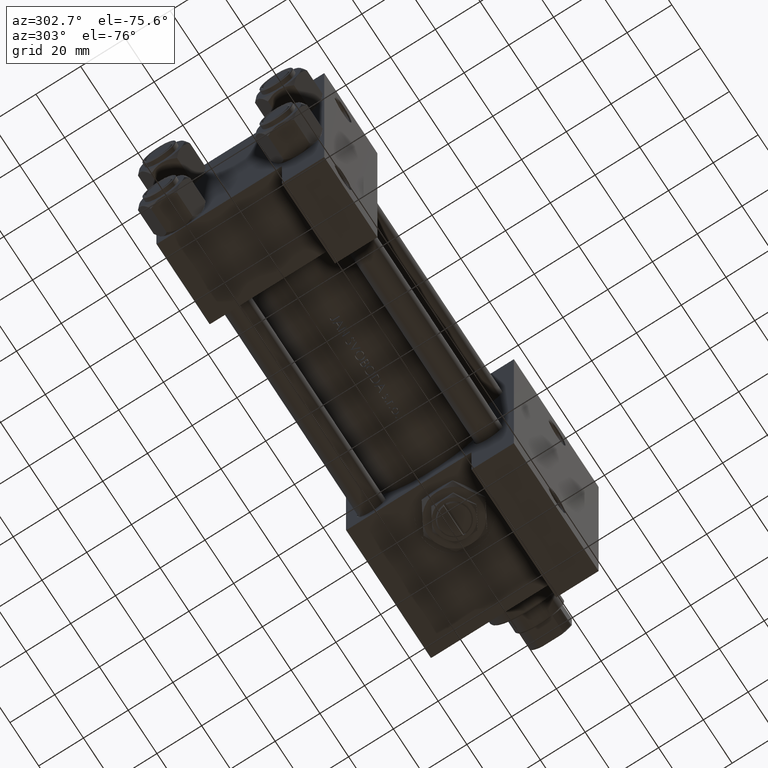
[diagram: clean part render]
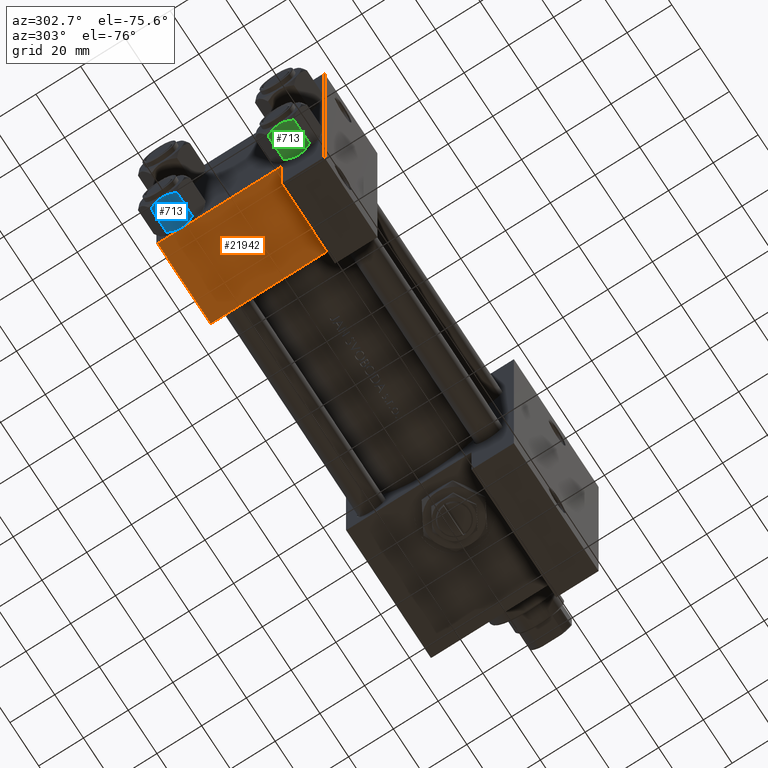
[diagram: same view with three faces highlighted in distinct colors, each labeled with its STEP entity id]
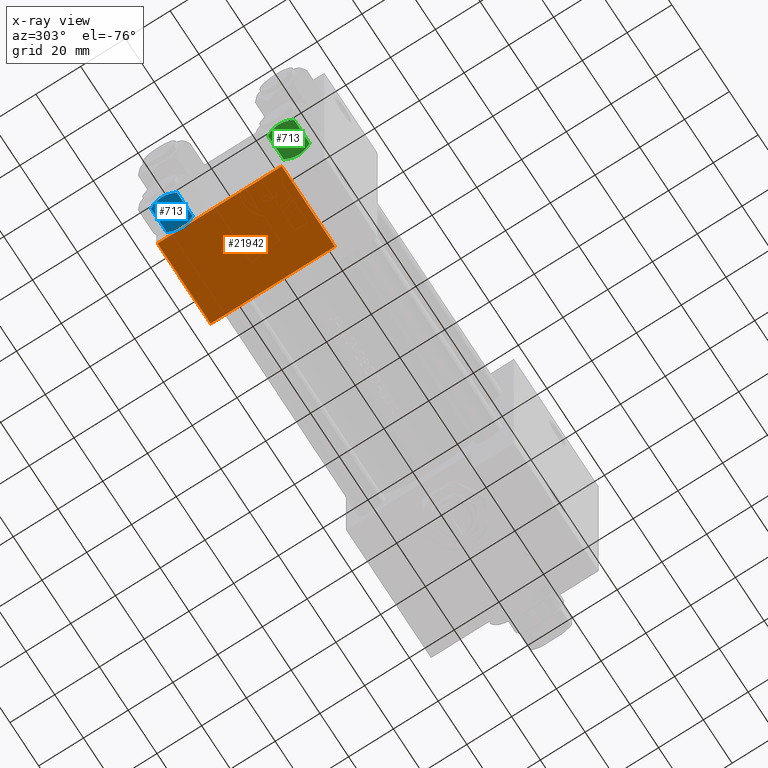
[diagram: x-ray of the same camera — body ghosted, the three highlighted faces saturated]
A machine part, auxiliary view with three faces highlighted in distinct colors.
The next image is the same camera in x-ray (body ghosted, the three faces saturated) — at least one of them is partly hidden behind the body in this view.
Their STEP definitions:

[orange] entity #21942 — the highlighted planar face has unit normal (0, 0, -1).
#377 = CARTESIAN_POINT ( 'NONE',  ( 37.00000000000000000, 37.49999999999999289, 37.50000000000000000 ) ) ;
#1804 = VERTEX_POINT ( 'NONE', #41792 ) ;
#3370 = PLANE ( 'NONE',  #10835 ) ;
#6867 = VECTOR ( 'NONE', #48019, 1000.000000000000000 ) ;
#7112 = DIRECTION ( 'NONE',  ( 0.000000000000000000, -0.000000000000000000, 1.000000000000000000 ) ) ;
#8088 = FACE_OUTER_BOUND ( 'NONE', #26944, .T. ) ;
#9000 = EDGE_CURVE ( 'NONE', #1804, #17429, #47773, .T. ) ;
#9659 = ORIENTED_EDGE ( 'NONE', *, *, #25188, .T. ) ;
#10063 = VERTEX_POINT ( 'NONE', #44769 ) ;
#10835 = AXIS2_PLACEMENT_3D ( 'NONE', #377, #23279, #7112 ) ;
#12839 = VECTOR ( 'NONE', #14360, 1000.000000000000000 ) ;
#14360 = DIRECTION ( 'NONE',  ( 1.000000000000000000, 0.000000000000000000, 0.000000000000000000 ) ) ;
#14484 = VERTEX_POINT ( 'NONE', #43153 ) ;
#17429 = VERTEX_POINT ( 'NONE', #33069 ) ;
#20888 = CARTESIAN_POINT ( 'NONE',  ( 0.000000000000000000, 37.49999999999999289, 37.50000000000000000 ) ) ;
#21195 = LINE ( 'NONE', #29406, #40357 ) ;
#21674 = DIRECTION ( 'NONE',  ( 0.000000000000000000, 0.000000000000000000, -1.000000000000000000 ) ) ;
#21718 = EDGE_CURVE ( 'NONE', #17429, #10063, #23658, .T. ) ;
#21942 = ADVANCED_FACE ( 'NONE', ( #8088 ), #3370, .T. ) ;
#23279 = DIRECTION ( 'NONE',  ( -0.000000000000000000, 1.000000000000000000, 0.000000000000000000 ) ) ;
#23658 = LINE ( 'NONE', #35113, #34673 ) ;
#24035 = ORIENTED_EDGE ( 'NONE', *, *, #43507, .T. ) ;
#25188 = EDGE_CURVE ( 'NONE', #14484, #10063, #21195, .T. ) ;
#26944 = EDGE_LOOP ( 'NONE', ( #45316, #43272, #24035, #9659 ) ) ;
#29406 = CARTESIAN_POINT ( 'NONE',  ( 37.00000000000000000, 37.49999999999999289, 37.50000000000000000 ) ) ;
#33069 = CARTESIAN_POINT ( 'NONE',  ( 0.000000000000000000, 37.49999999999999289, -18.49999999999999645 ) ) ;
#34673 = VECTOR ( 'NONE', #42831, 1000.000000000000000 ) ;
#35113 = CARTESIAN_POINT ( 'NONE',  ( 8.470280871287256020E-15, 37.50000000000002842, -18.49999999999999645 ) ) ;
#40357 = VECTOR ( 'NONE', #21674, 1000.000000000000000 ) ;
#41502 = CARTESIAN_POINT ( 'NONE',  ( 37.00000000000000000, 37.49999999999999289, 37.00000000000000000 ) ) ;
#41792 = CARTESIAN_POINT ( 'NONE',  ( 0.000000000000000000, 37.49999999999999289, 37.00000000000000000 ) ) ;
#42831 = DIRECTION ( 'NONE',  ( 1.000000000000000000, -3.750753461571474945E-16, 0.000000000000000000 ) ) ;
#43153 = CARTESIAN_POINT ( 'NONE',  ( 37.00000000000000000, 37.49999999999999289, 37.00000000000000000 ) ) ;
#43272 = ORIENTED_EDGE ( 'NONE', *, *, #9000, .F. ) ;
#43507 = EDGE_CURVE ( 'NONE', #1804, #14484, #48982, .T. ) ;
#44769 = CARTESIAN_POINT ( 'NONE',  ( 37.00000000000000711, 37.50000000000000711, -18.50000000000000355 ) ) ;
#45316 = ORIENTED_EDGE ( 'NONE', *, *, #21718, .F. ) ;
#47773 = LINE ( 'NONE', #20888, #6867 ) ;
#48019 = DIRECTION ( 'NONE',  ( 0.000000000000000000, 0.000000000000000000, -1.000000000000000000 ) ) ;
#48982 = LINE ( 'NONE', #41502, #12839 ) ;

[blue] entity #713 — the highlighted planar face has unit normal (0, -0, 1).
#143 = B_SPLINE_CURVE_WITH_KNOTS ( 'NONE', 3,
 ( #30904, #3746, #15185, #38385, #8215, #42591, #16166, #3999, #22919 ),
 .UNSPECIFIED., .F., .F.,
 ( 4, 2, 1, 2, 4 ),
 ( 0.02074012592819902620, 0.02149589804477579011, 0.02225167016135255749, 0.02376321439450608530, 0.02678630286081314441 ),
 .UNSPECIFIED. ) ;
#272 = CARTESIAN_POINT ( 'NONE',  ( -5.810000000000000497, -10.06321519197517844, -1.556784808024815225 ) ) ;
#713 = ADVANCED_FACE ( 'NONE', ( #41242 ), #26524, .F. ) ;
#741 = VECTOR ( 'NONE', #18394, 1000.000000000000000 ) ;
#1150 = ORIENTED_EDGE ( 'NONE', *, *, #16291, .F. ) ;
#1700 = VERTEX_POINT ( 'NONE', #7914 ) ;
#2550 = LINE ( 'NONE', #25948, #7567 ) ;
#2715 = B_SPLINE_CURVE_WITH_KNOTS ( 'NONE', 3,
 ( #18797, #25547, #29550, #44715, #11083, #41473, #7347, #21819 ),
 .UNSPECIFIED., .F., .F.,
 ( 4, 2, 2, 4 ),
 ( 0.01467889604968879332, 0.01619420351931635110, 0.01770951098894391063, 0.02074012592819902620 ),
 .UNSPECIFIED. ) ;
#3210 = LINE ( 'NONE', #41555, #741 ) ;
#3746 = CARTESIAN_POINT ( 'NONE',  ( -0.2543996698847483806, -10.06321519197517667, -14.00000000000000355 ) ) ;
#3999 = CARTESIAN_POINT ( 'NONE',  ( -4.908816193182379273, -10.06321519197517667, -12.89380709538398939 ) ) ;
#5708 = ORIENTED_EDGE ( 'NONE', *, *, #12709, .F. ) ;
#7347 = CARTESIAN_POINT ( 'NONE',  ( 1.020132157807625672, -10.06321519197517489, -14.00000000000000178 ) ) ;
#7567 = VECTOR ( 'NONE', #17993, 1000.000000000000000 ) ;
#7604 = CARTESIAN_POINT ( 'NONE',  ( 5.810000000000000497, -10.06321519197517667, -14.00000000000000000 ) ) ;
#7914 = CARTESIAN_POINT ( 'NONE',  ( 1.502314598737159820E-15, -10.06321519197518022, -14.00000000000000000 ) ) ;
#8215 = CARTESIAN_POINT ( 'NONE',  ( -1.772424303831128478, -10.06321519197517489, -13.86611290782776251 ) ) ;
#8621 = CARTESIAN_POINT ( 'NONE',  ( 1.772424303831127812, -10.06321519197517844, -0.1338870921722363216 ) ) ;
#10336 = EDGE_CURVE ( 'NONE', #31970, #1700, #2715, .T. ) ;
#11083 = CARTESIAN_POINT ( 'NONE',  ( 3.474497094393254049, -10.06321519197517667, -13.42730390989572697 ) ) ;
#11856 = CARTESIAN_POINT ( 'NONE',  ( 2.508586450168040383, -10.06321519197517667, -0.2975752632032270806 ) ) ;
#12709 = EDGE_CURVE ( 'NONE', #1700, #24474, #143, .T. ) ;
#12872 = CARTESIAN_POINT ( 'NONE',  ( 5.810000000000000497, -10.06321519197517667, -1.556784808024813671 ) ) ;
#14211 = VERTEX_POINT ( 'NONE', #12872 ) ;
#15185 = CARTESIAN_POINT ( 'NONE',  ( -0.5112014849988886223, -10.06321519197517489, -13.99019602057109068 ) ) ;
#16166 = CARTESIAN_POINT ( 'NONE',  ( -3.960942496020602555, -10.06321519197517667, -13.28842716763895737 ) ) ;
#16191 = CARTESIAN_POINT ( 'NONE',  ( -2.013954290287966575, -10.06321519197517844, -0.1570111679759964574 ) ) ;
#16291 = EDGE_CURVE ( 'NONE', #24474, #28967, #2550, .T. ) ;
#17863 = B_SPLINE_CURVE_WITH_KNOTS ( 'NONE', 3,
 ( #46333, #31908, #46091, #42865, #31171, #16191, #34899, #31425 ),
 .UNSPECIFIED., .F., .F.,
 ( 4, 2, 2, 4 ),
 ( 0.01467889604968879505, 0.01619420351931635110, 0.01770951098894391063, 0.02074012592819902620 ),
 .UNSPECIFIED. ) ;
#17993 = DIRECTION ( 'NONE',  ( -0.000000000000000000, -0.000000000000000000, 1.000000000000000000 ) ) ;
#18394 = DIRECTION ( 'NONE',  ( -0.000000000000000000, -0.000000000000000000, 1.000000000000000000 ) ) ;
#18797 = CARTESIAN_POINT ( 'NONE',  ( 5.810000000000000497, -10.06321519197517667, -12.44321519197518633 ) ) ;
#19056 = DIRECTION ( 'NONE',  ( -1.000000000000000000, -1.492877345935290102E-16, 0.000000000000000000 ) ) ;
#19576 = CARTESIAN_POINT ( 'NONE',  ( 1.502314598737159820E-15, -10.06321519197518022, 0.000000000000000000 ) ) ;
#19765 = EDGE_LOOP ( 'NONE', ( #34352, #41991, #25254, #41942, #1150, #5708 ) ) ;
#19819 = CARTESIAN_POINT ( 'NONE',  ( 4.908816193182379273, -10.06321519197517844, -1.106192904616004835 ) ) ;
#21819 = CARTESIAN_POINT ( 'NONE',  ( 1.502314598737159820E-15, -10.06321519197518022, -14.00000000000000000 ) ) ;
#22919 = CARTESIAN_POINT ( 'NONE',  ( -5.810000000000000497, -10.06321519197517844, -12.44321519197518455 ) ) ;
#24474 = VERTEX_POINT ( 'NONE', #41179 ) ;
#25254 = ORIENTED_EDGE ( 'NONE', *, *, #44453, .F. ) ;
#25547 = CARTESIAN_POINT ( 'NONE',  ( 5.359707691559676412, -10.06321519197517844, -12.66836134619534882 ) ) ;
#25948 = CARTESIAN_POINT ( 'NONE',  ( -5.810000000000000497, -10.06321519197517844, -14.00000000000000000 ) ) ;
#26524 = PLANE ( 'NONE',  #43166 ) ;
#28967 = VERTEX_POINT ( 'NONE', #272 ) ;
#29198 = EDGE_CURVE ( 'NONE', #31970, #14211, #3210, .T. ) ;
#29550 = CARTESIAN_POINT ( 'NONE',  ( 4.900668367960796523, -10.06321519197517489, -12.87844331629023209 ) ) ;
#30904 = CARTESIAN_POINT ( 'NONE',  ( 1.502314598737159820E-15, -10.06321519197518022, -14.00000000000000000 ) ) ;
#31054 = CARTESIAN_POINT ( 'NONE',  ( 0.2543996698847487137, -10.06321519197517844, 2.651777813537460036E-15 ) ) ;
#31171 = CARTESIAN_POINT ( 'NONE',  ( -3.474497094393253604, -10.06321519197517844, -0.5726960901042740248 ) ) ;
#31425 = CARTESIAN_POINT ( 'NONE',  ( 1.502314598737159820E-15, -10.06321519197518022, 0.000000000000000000 ) ) ;
#31908 = CARTESIAN_POINT ( 'NONE',  ( -5.359707691559672860, -10.06321519197517667, -1.331638653804653405 ) ) ;
#31970 = VERTEX_POINT ( 'NONE', #47795 ) ;
#34352 = ORIENTED_EDGE ( 'NONE', *, *, #10336, .F. ) ;
#34682 = CARTESIAN_POINT ( 'NONE',  ( 1.502314598737159820E-15, -10.06321519197518022, 0.000000000000000000 ) ) ;
#34899 = CARTESIAN_POINT ( 'NONE',  ( -1.020132157807625450, -10.06321519197517667, 2.398797306624178560E-15 ) ) ;
#38010 = DIRECTION ( 'NONE',  ( -1.492877345935290102E-16, 1.000000000000000000, 0.000000000000000000 ) ) ;
#38385 = CARTESIAN_POINT ( 'NONE',  ( -1.018274738099085086, -10.06321519197517667, -13.95177257919929126 ) ) ;
#40418 = B_SPLINE_CURVE_WITH_KNOTS ( 'NONE', 3,
 ( #19576, #31054, #45976, #42003, #8621, #11856, #45732, #19819, #46467 ),
 .UNSPECIFIED., .F., .F.,
 ( 4, 2, 1, 2, 4 ),
 ( 0.02074012592819902620, 0.02149589804477579011, 0.02225167016135255402, 0.02376321439450608530, 0.02678630286081314441 ),
 .UNSPECIFIED. ) ;
#41179 = CARTESIAN_POINT ( 'NONE',  ( -5.810000000000000497, -10.06321519197517844, -12.44321519197518455 ) ) ;
#41242 = FACE_OUTER_BOUND ( 'NONE', #19765, .T. ) ;
#41473 = CARTESIAN_POINT ( 'NONE',  ( 2.013954290287967019, -10.06321519197517489, -13.84298883202400532 ) ) ;
#41555 = CARTESIAN_POINT ( 'NONE',  ( 5.810000000000000497, -10.06321519197517667, -14.00000000000000000 ) ) ;
#41942 = ORIENTED_EDGE ( 'NONE', *, *, #42973, .F. ) ;
#41991 = ORIENTED_EDGE ( 'NONE', *, *, #29198, .T. ) ;
#42003 = CARTESIAN_POINT ( 'NONE',  ( 1.018274738099085086, -10.06321519197517311, -0.04822742080070722276 ) ) ;
#42591 = CARTESIAN_POINT ( 'NONE',  ( -2.508586450168039494, -10.06321519197517844, -13.70242473679676998 ) ) ;
#42865 = CARTESIAN_POINT ( 'NONE',  ( -3.958929922320422179, -10.06321519197517667, -0.7421398502353990789 ) ) ;
#42973 = EDGE_CURVE ( 'NONE', #28967, #48630, #17863, .T. ) ;
#43166 = AXIS2_PLACEMENT_3D ( 'NONE', #7604, #38010, #19056 ) ;
#44453 = EDGE_CURVE ( 'NONE', #48630, #14211, #40418, .T. ) ;
#44715 = CARTESIAN_POINT ( 'NONE',  ( 3.958929922320422179, -10.06321519197517489, -13.25786014976459803 ) ) ;
#45732 = CARTESIAN_POINT ( 'NONE',  ( 3.960942496020602555, -10.06321519197517667, -0.7115728323610392980 ) ) ;
#45976 = CARTESIAN_POINT ( 'NONE',  ( 0.5112014849988887333, -10.06321519197517667, -0.009803979428911684807 ) ) ;
#46091 = CARTESIAN_POINT ( 'NONE',  ( -4.900668367960797411, -10.06321519197517844, -1.121556683709773683 ) ) ;
#46333 = CARTESIAN_POINT ( 'NONE',  ( -5.810000000000000497, -10.06321519197517844, -1.556784808024815225 ) ) ;
#46467 = CARTESIAN_POINT ( 'NONE',  ( 5.810000000000000497, -10.06321519197517667, -1.556784808024813671 ) ) ;
#47795 = CARTESIAN_POINT ( 'NONE',  ( 5.810000000000000497, -10.06321519197517667, -12.44321519197518633 ) ) ;
#48630 = VERTEX_POINT ( 'NONE', #34682 ) ;

[green] entity #713 — the highlighted planar face has unit normal (0, 0, 1).
#143 = B_SPLINE_CURVE_WITH_KNOTS ( 'NONE', 3,
 ( #30904, #3746, #15185, #38385, #8215, #42591, #16166, #3999, #22919 ),
 .UNSPECIFIED., .F., .F.,
 ( 4, 2, 1, 2, 4 ),
 ( 0.02074012592819902620, 0.02149589804477579011, 0.02225167016135255749, 0.02376321439450608530, 0.02678630286081314441 ),
 .UNSPECIFIED. ) ;
#272 = CARTESIAN_POINT ( 'NONE',  ( -5.810000000000000497, -10.06321519197517844, -1.556784808024815225 ) ) ;
#713 = ADVANCED_FACE ( 'NONE', ( #41242 ), #26524, .F. ) ;
#741 = VECTOR ( 'NONE', #18394, 1000.000000000000000 ) ;
#1150 = ORIENTED_EDGE ( 'NONE', *, *, #16291, .F. ) ;
#1700 = VERTEX_POINT ( 'NONE', #7914 ) ;
#2550 = LINE ( 'NONE', #25948, #7567 ) ;
#2715 = B_SPLINE_CURVE_WITH_KNOTS ( 'NONE', 3,
 ( #18797, #25547, #29550, #44715, #11083, #41473, #7347, #21819 ),
 .UNSPECIFIED., .F., .F.,
 ( 4, 2, 2, 4 ),
 ( 0.01467889604968879332, 0.01619420351931635110, 0.01770951098894391063, 0.02074012592819902620 ),
 .UNSPECIFIED. ) ;
#3210 = LINE ( 'NONE', #41555, #741 ) ;
#3746 = CARTESIAN_POINT ( 'NONE',  ( -0.2543996698847483806, -10.06321519197517667, -14.00000000000000355 ) ) ;
#3999 = CARTESIAN_POINT ( 'NONE',  ( -4.908816193182379273, -10.06321519197517667, -12.89380709538398939 ) ) ;
#5708 = ORIENTED_EDGE ( 'NONE', *, *, #12709, .F. ) ;
#7347 = CARTESIAN_POINT ( 'NONE',  ( 1.020132157807625672, -10.06321519197517489, -14.00000000000000178 ) ) ;
#7567 = VECTOR ( 'NONE', #17993, 1000.000000000000000 ) ;
#7604 = CARTESIAN_POINT ( 'NONE',  ( 5.810000000000000497, -10.06321519197517667, -14.00000000000000000 ) ) ;
#7914 = CARTESIAN_POINT ( 'NONE',  ( 1.502314598737159820E-15, -10.06321519197518022, -14.00000000000000000 ) ) ;
#8215 = CARTESIAN_POINT ( 'NONE',  ( -1.772424303831128478, -10.06321519197517489, -13.86611290782776251 ) ) ;
#8621 = CARTESIAN_POINT ( 'NONE',  ( 1.772424303831127812, -10.06321519197517844, -0.1338870921722363216 ) ) ;
#10336 = EDGE_CURVE ( 'NONE', #31970, #1700, #2715, .T. ) ;
#11083 = CARTESIAN_POINT ( 'NONE',  ( 3.474497094393254049, -10.06321519197517667, -13.42730390989572697 ) ) ;
#11856 = CARTESIAN_POINT ( 'NONE',  ( 2.508586450168040383, -10.06321519197517667, -0.2975752632032270806 ) ) ;
#12709 = EDGE_CURVE ( 'NONE', #1700, #24474, #143, .T. ) ;
#12872 = CARTESIAN_POINT ( 'NONE',  ( 5.810000000000000497, -10.06321519197517667, -1.556784808024813671 ) ) ;
#14211 = VERTEX_POINT ( 'NONE', #12872 ) ;
#15185 = CARTESIAN_POINT ( 'NONE',  ( -0.5112014849988886223, -10.06321519197517489, -13.99019602057109068 ) ) ;
#16166 = CARTESIAN_POINT ( 'NONE',  ( -3.960942496020602555, -10.06321519197517667, -13.28842716763895737 ) ) ;
#16191 = CARTESIAN_POINT ( 'NONE',  ( -2.013954290287966575, -10.06321519197517844, -0.1570111679759964574 ) ) ;
#16291 = EDGE_CURVE ( 'NONE', #24474, #28967, #2550, .T. ) ;
#17863 = B_SPLINE_CURVE_WITH_KNOTS ( 'NONE', 3,
 ( #46333, #31908, #46091, #42865, #31171, #16191, #34899, #31425 ),
 .UNSPECIFIED., .F., .F.,
 ( 4, 2, 2, 4 ),
 ( 0.01467889604968879505, 0.01619420351931635110, 0.01770951098894391063, 0.02074012592819902620 ),
 .UNSPECIFIED. ) ;
#17993 = DIRECTION ( 'NONE',  ( -0.000000000000000000, -0.000000000000000000, 1.000000000000000000 ) ) ;
#18394 = DIRECTION ( 'NONE',  ( -0.000000000000000000, -0.000000000000000000, 1.000000000000000000 ) ) ;
#18797 = CARTESIAN_POINT ( 'NONE',  ( 5.810000000000000497, -10.06321519197517667, -12.44321519197518633 ) ) ;
#19056 = DIRECTION ( 'NONE',  ( -1.000000000000000000, -1.492877345935290102E-16, 0.000000000000000000 ) ) ;
#19576 = CARTESIAN_POINT ( 'NONE',  ( 1.502314598737159820E-15, -10.06321519197518022, 0.000000000000000000 ) ) ;
#19765 = EDGE_LOOP ( 'NONE', ( #34352, #41991, #25254, #41942, #1150, #5708 ) ) ;
#19819 = CARTESIAN_POINT ( 'NONE',  ( 4.908816193182379273, -10.06321519197517844, -1.106192904616004835 ) ) ;
#21819 = CARTESIAN_POINT ( 'NONE',  ( 1.502314598737159820E-15, -10.06321519197518022, -14.00000000000000000 ) ) ;
#22919 = CARTESIAN_POINT ( 'NONE',  ( -5.810000000000000497, -10.06321519197517844, -12.44321519197518455 ) ) ;
#24474 = VERTEX_POINT ( 'NONE', #41179 ) ;
#25254 = ORIENTED_EDGE ( 'NONE', *, *, #44453, .F. ) ;
#25547 = CARTESIAN_POINT ( 'NONE',  ( 5.359707691559676412, -10.06321519197517844, -12.66836134619534882 ) ) ;
#25948 = CARTESIAN_POINT ( 'NONE',  ( -5.810000000000000497, -10.06321519197517844, -14.00000000000000000 ) ) ;
#26524 = PLANE ( 'NONE',  #43166 ) ;
#28967 = VERTEX_POINT ( 'NONE', #272 ) ;
#29198 = EDGE_CURVE ( 'NONE', #31970, #14211, #3210, .T. ) ;
#29550 = CARTESIAN_POINT ( 'NONE',  ( 4.900668367960796523, -10.06321519197517489, -12.87844331629023209 ) ) ;
#30904 = CARTESIAN_POINT ( 'NONE',  ( 1.502314598737159820E-15, -10.06321519197518022, -14.00000000000000000 ) ) ;
#31054 = CARTESIAN_POINT ( 'NONE',  ( 0.2543996698847487137, -10.06321519197517844, 2.651777813537460036E-15 ) ) ;
#31171 = CARTESIAN_POINT ( 'NONE',  ( -3.474497094393253604, -10.06321519197517844, -0.5726960901042740248 ) ) ;
#31425 = CARTESIAN_POINT ( 'NONE',  ( 1.502314598737159820E-15, -10.06321519197518022, 0.000000000000000000 ) ) ;
#31908 = CARTESIAN_POINT ( 'NONE',  ( -5.359707691559672860, -10.06321519197517667, -1.331638653804653405 ) ) ;
#31970 = VERTEX_POINT ( 'NONE', #47795 ) ;
#34352 = ORIENTED_EDGE ( 'NONE', *, *, #10336, .F. ) ;
#34682 = CARTESIAN_POINT ( 'NONE',  ( 1.502314598737159820E-15, -10.06321519197518022, 0.000000000000000000 ) ) ;
#34899 = CARTESIAN_POINT ( 'NONE',  ( -1.020132157807625450, -10.06321519197517667, 2.398797306624178560E-15 ) ) ;
#38010 = DIRECTION ( 'NONE',  ( -1.492877345935290102E-16, 1.000000000000000000, 0.000000000000000000 ) ) ;
#38385 = CARTESIAN_POINT ( 'NONE',  ( -1.018274738099085086, -10.06321519197517667, -13.95177257919929126 ) ) ;
#40418 = B_SPLINE_CURVE_WITH_KNOTS ( 'NONE', 3,
 ( #19576, #31054, #45976, #42003, #8621, #11856, #45732, #19819, #46467 ),
 .UNSPECIFIED., .F., .F.,
 ( 4, 2, 1, 2, 4 ),
 ( 0.02074012592819902620, 0.02149589804477579011, 0.02225167016135255402, 0.02376321439450608530, 0.02678630286081314441 ),
 .UNSPECIFIED. ) ;
#41179 = CARTESIAN_POINT ( 'NONE',  ( -5.810000000000000497, -10.06321519197517844, -12.44321519197518455 ) ) ;
#41242 = FACE_OUTER_BOUND ( 'NONE', #19765, .T. ) ;
#41473 = CARTESIAN_POINT ( 'NONE',  ( 2.013954290287967019, -10.06321519197517489, -13.84298883202400532 ) ) ;
#41555 = CARTESIAN_POINT ( 'NONE',  ( 5.810000000000000497, -10.06321519197517667, -14.00000000000000000 ) ) ;
#41942 = ORIENTED_EDGE ( 'NONE', *, *, #42973, .F. ) ;
#41991 = ORIENTED_EDGE ( 'NONE', *, *, #29198, .T. ) ;
#42003 = CARTESIAN_POINT ( 'NONE',  ( 1.018274738099085086, -10.06321519197517311, -0.04822742080070722276 ) ) ;
#42591 = CARTESIAN_POINT ( 'NONE',  ( -2.508586450168039494, -10.06321519197517844, -13.70242473679676998 ) ) ;
#42865 = CARTESIAN_POINT ( 'NONE',  ( -3.958929922320422179, -10.06321519197517667, -0.7421398502353990789 ) ) ;
#42973 = EDGE_CURVE ( 'NONE', #28967, #48630, #17863, .T. ) ;
#43166 = AXIS2_PLACEMENT_3D ( 'NONE', #7604, #38010, #19056 ) ;
#44453 = EDGE_CURVE ( 'NONE', #48630, #14211, #40418, .T. ) ;
#44715 = CARTESIAN_POINT ( 'NONE',  ( 3.958929922320422179, -10.06321519197517489, -13.25786014976459803 ) ) ;
#45732 = CARTESIAN_POINT ( 'NONE',  ( 3.960942496020602555, -10.06321519197517667, -0.7115728323610392980 ) ) ;
#45976 = CARTESIAN_POINT ( 'NONE',  ( 0.5112014849988887333, -10.06321519197517667, -0.009803979428911684807 ) ) ;
#46091 = CARTESIAN_POINT ( 'NONE',  ( -4.900668367960797411, -10.06321519197517844, -1.121556683709773683 ) ) ;
#46333 = CARTESIAN_POINT ( 'NONE',  ( -5.810000000000000497, -10.06321519197517844, -1.556784808024815225 ) ) ;
#46467 = CARTESIAN_POINT ( 'NONE',  ( 5.810000000000000497, -10.06321519197517667, -1.556784808024813671 ) ) ;
#47795 = CARTESIAN_POINT ( 'NONE',  ( 5.810000000000000497, -10.06321519197517667, -12.44321519197518633 ) ) ;
#48630 = VERTEX_POINT ( 'NONE', #34682 ) ;